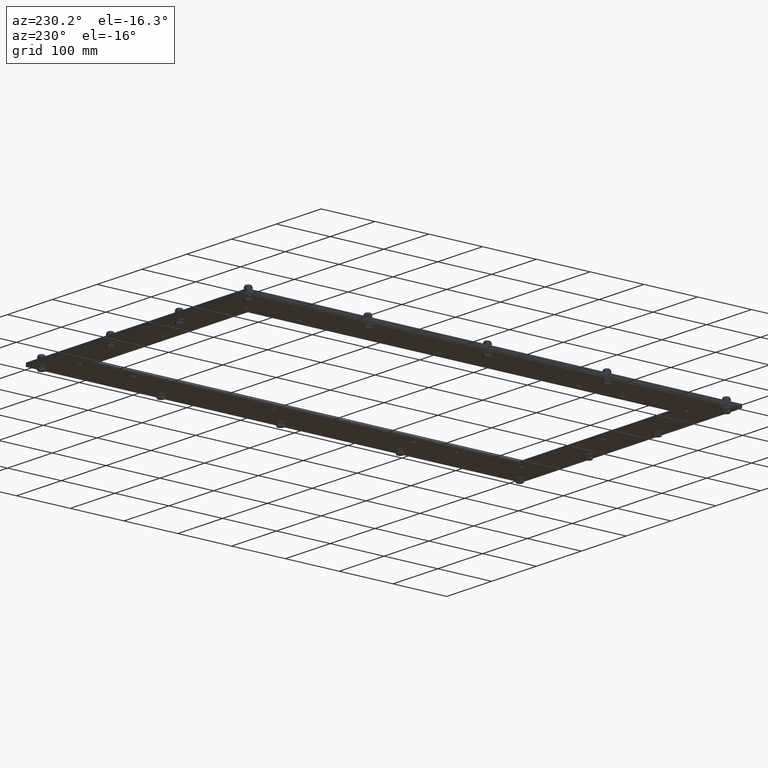
[diagram: clean part render]
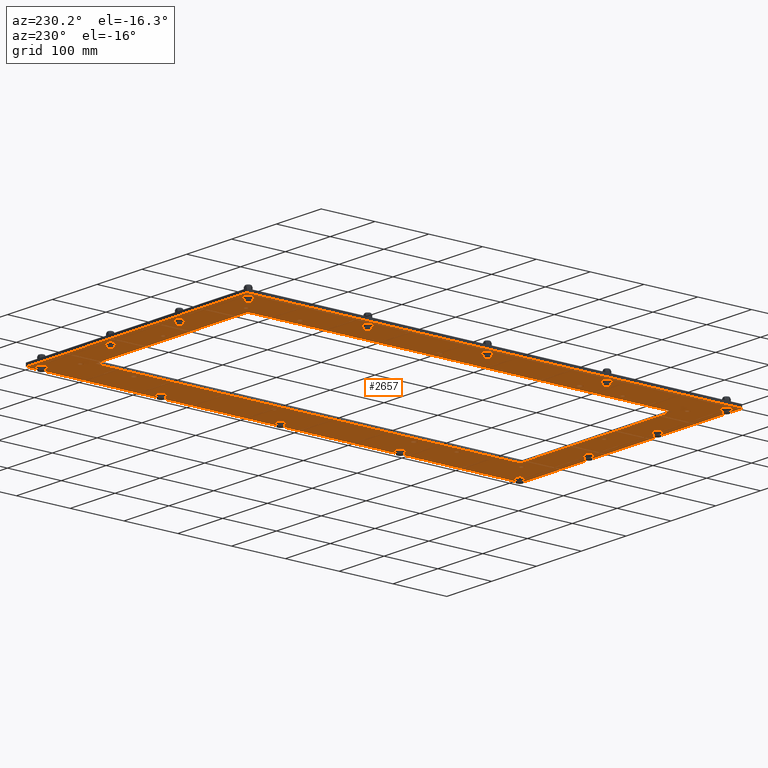
[diagram: same view with one face highlighted and labeled with its STEP entity id]
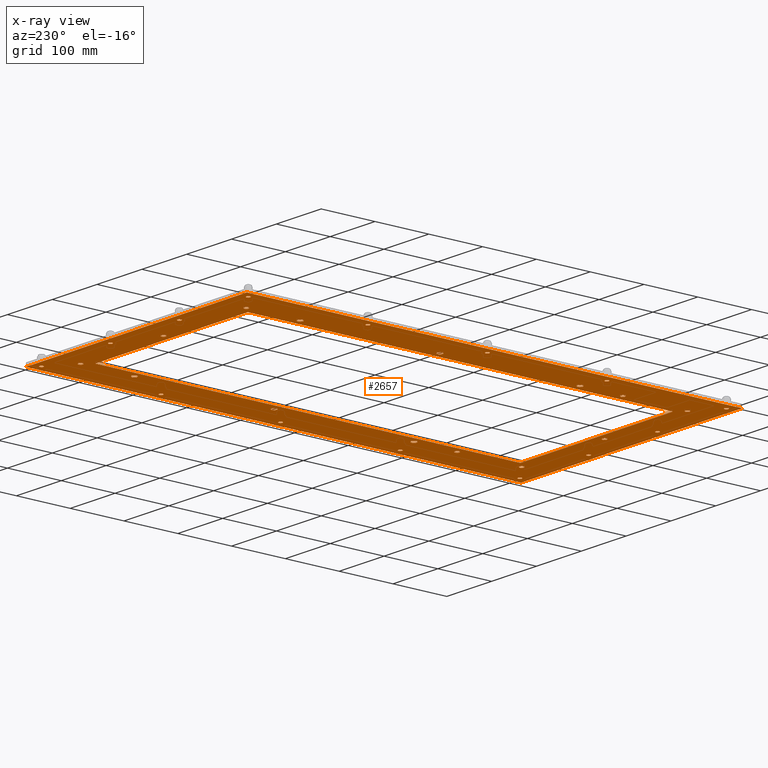
[diagram: x-ray of the same camera — body ghosted, the highlighted face saturated]
A machine part, auxiliary view. The second image highlights one B-rep face of the part: STEP entity #2657.
The next image is the same camera in x-ray: the body ghosted, the highlighted face saturated — about 0% of this face is hidden behind the body in this view.
In plain terms, the highlighted planar face has unit normal (0, 0, 1).
Its self-contained STEP definition (entity closure, byte-faithful):
#214=FACE_BOUND('',#767,.T.);
#215=FACE_BOUND('',#768,.T.);
#216=FACE_BOUND('',#769,.T.);
#217=FACE_BOUND('',#770,.T.);
#218=FACE_BOUND('',#771,.T.);
#219=FACE_BOUND('',#772,.T.);
#220=FACE_BOUND('',#773,.T.);
#221=FACE_BOUND('',#774,.T.);
#222=FACE_BOUND('',#775,.T.);
#223=FACE_BOUND('',#776,.T.);
#224=FACE_BOUND('',#777,.T.);
#225=FACE_BOUND('',#778,.T.);
#226=FACE_BOUND('',#779,.T.);
#227=FACE_BOUND('',#780,.T.);
#228=FACE_BOUND('',#781,.T.);
#229=FACE_BOUND('',#782,.T.);
#230=FACE_BOUND('',#783,.T.);
#231=FACE_BOUND('',#784,.T.);
#232=FACE_BOUND('',#785,.T.);
#233=FACE_BOUND('',#786,.T.);
#234=FACE_BOUND('',#787,.T.);
#235=FACE_BOUND('',#788,.T.);
#236=FACE_BOUND('',#789,.T.);
#237=FACE_BOUND('',#790,.T.);
#238=FACE_BOUND('',#791,.T.);
#239=FACE_BOUND('',#792,.T.);
#240=FACE_BOUND('',#793,.T.);
#241=FACE_BOUND('',#794,.T.);
#242=FACE_BOUND('',#795,.T.);
#319=CIRCLE('',#2784,0.1968504);
#321=CIRCLE('',#2787,0.1968504);
#323=CIRCLE('',#2790,0.1968504);
#325=CIRCLE('',#2793,0.1968504);
#327=CIRCLE('',#2796,0.1968504);
#329=CIRCLE('',#2799,0.1968504);
#331=CIRCLE('',#2802,0.1574803);
#333=CIRCLE('',#2805,0.1574803);
#335=CIRCLE('',#2808,0.1574803);
#337=CIRCLE('',#2811,0.1574803);
#339=CIRCLE('',#2814,0.1574803);
#341=CIRCLE('',#2817,0.1574803);
#343=CIRCLE('',#2820,0.1574803);
#345=CIRCLE('',#2823,0.1574803);
#347=CIRCLE('',#2826,0.140625);
#349=CIRCLE('',#2829,0.140625);
#351=CIRCLE('',#2832,0.140625);
#353=CIRCLE('',#2835,0.140625);
#355=CIRCLE('',#2838,0.140625);
#357=CIRCLE('',#2841,0.140625);
#359=CIRCLE('',#2844,0.140625);
#361=CIRCLE('',#2847,0.140625);
#363=CIRCLE('',#2850,0.140625);
#365=CIRCLE('',#2853,0.140625);
#367=CIRCLE('',#2856,0.140625);
#369=CIRCLE('',#2859,0.140625);
#371=CIRCLE('',#2862,0.140625);
#373=CIRCLE('',#2865,0.140625);
#558=FACE_OUTER_BOUND('',#766,.T.);
#766=EDGE_LOOP('',(#1940,#1941,#1942,#1943));
#767=EDGE_LOOP('',(#1944,#1945,#1946,#1947));
#768=EDGE_LOOP('',(#1948));
#769=EDGE_LOOP('',(#1949));
#770=EDGE_LOOP('',(#1950));
#771=EDGE_LOOP('',(#1951));
#772=EDGE_LOOP('',(#1952));
#773=EDGE_LOOP('',(#1953));
#774=EDGE_LOOP('',(#1954));
#775=EDGE_LOOP('',(#1955));
#776=EDGE_LOOP('',(#1956));
#777=EDGE_LOOP('',(#1957));
#778=EDGE_LOOP('',(#1958));
#779=EDGE_LOOP('',(#1959));
#780=EDGE_LOOP('',(#1960));
#781=EDGE_LOOP('',(#1961));
#782=EDGE_LOOP('',(#1962));
#783=EDGE_LOOP('',(#1963));
#784=EDGE_LOOP('',(#1964));
#785=EDGE_LOOP('',(#1965));
#786=EDGE_LOOP('',(#1966));
#787=EDGE_LOOP('',(#1967));
#788=EDGE_LOOP('',(#1968));
#789=EDGE_LOOP('',(#1969));
#790=EDGE_LOOP('',(#1970));
#791=EDGE_LOOP('',(#1971));
#792=EDGE_LOOP('',(#1972));
#793=EDGE_LOOP('',(#1973));
#794=EDGE_LOOP('',(#1974));
#795=EDGE_LOOP('',(#1975));
#985=LINE('',#3886,#1126);
#989=LINE('',#3894,#1130);
#992=LINE('',#3900,#1133);
#995=LINE('',#3905,#1136);
#999=LINE('',#4054,#1140);
#1003=LINE('',#4061,#1144);
#1006=LINE('',#4067,#1147);
#1008=LINE('',#4070,#1149);
#1126=VECTOR('',#3103,13.38583);
#1130=VECTOR('',#3109,31.10236);
#1133=VECTOR('',#3114,13.38583);
#1136=VECTOR('',#3119,31.10236);
#1140=VECTOR('',#3293,36.25);
#1144=VECTOR('',#3299,19.40625);
#1147=VECTOR('',#3304,36.25);
#1149=VECTOR('',#3308,19.40625);
#1267=VERTEX_POINT('',#3884);
#1268=VERTEX_POINT('',#3885);
#1271=VERTEX_POINT('',#3893);
#1273=VERTEX_POINT('',#3899);
#1275=VERTEX_POINT('',#3908);
#1277=VERTEX_POINT('',#3913);
#1279=VERTEX_POINT('',#3918);
#1281=VERTEX_POINT('',#3923);
#1283=VERTEX_POINT('',#3928);
#1285=VERTEX_POINT('',#3933);
#1287=VERTEX_POINT('',#3938);
#1289=VERTEX_POINT('',#3943);
#1291=VERTEX_POINT('',#3948);
#1293=VERTEX_POINT('',#3953);
#1295=VERTEX_POINT('',#3958);
#1297=VERTEX_POINT('',#3963);
#1299=VERTEX_POINT('',#3968);
#1301=VERTEX_POINT('',#3973);
#1303=VERTEX_POINT('',#3978);
#1305=VERTEX_POINT('',#3983);
#1307=VERTEX_POINT('',#3988);
#1309=VERTEX_POINT('',#3993);
#1311=VERTEX_POINT('',#3998);
#1313=VERTEX_POINT('',#4003);
#1315=VERTEX_POINT('',#4008);
#1317=VERTEX_POINT('',#4013);
#1319=VERTEX_POINT('',#4018);
#1321=VERTEX_POINT('',#4023);
#1323=VERTEX_POINT('',#4028);
#1325=VERTEX_POINT('',#4033);
#1327=VERTEX_POINT('',#4038);
#1329=VERTEX_POINT('',#4043);
#1333=VERTEX_POINT('',#4051);
#1334=VERTEX_POINT('',#4053);
#1336=VERTEX_POINT('',#4059);
#1338=VERTEX_POINT('',#4065);
#1507=EDGE_CURVE('',#1267,#1268,#985,.T.);
#1511=EDGE_CURVE('',#1268,#1271,#989,.T.);
#1514=EDGE_CURVE('',#1271,#1273,#992,.T.);
#1517=EDGE_CURVE('',#1273,#1267,#995,.T.);
#1519=EDGE_CURVE('',#1275,#1275,#319,.T.);
#1521=EDGE_CURVE('',#1277,#1277,#321,.T.);
#1523=EDGE_CURVE('',#1279,#1279,#323,.T.);
#1525=EDGE_CURVE('',#1281,#1281,#325,.T.);
#1527=EDGE_CURVE('',#1283,#1283,#327,.T.);
#1529=EDGE_CURVE('',#1285,#1285,#329,.T.);
#1531=EDGE_CURVE('',#1287,#1287,#331,.T.);
#1533=EDGE_CURVE('',#1289,#1289,#333,.T.);
#1535=EDGE_CURVE('',#1291,#1291,#335,.T.);
#1537=EDGE_CURVE('',#1293,#1293,#337,.T.);
#1539=EDGE_CURVE('',#1295,#1295,#339,.T.);
#1541=EDGE_CURVE('',#1297,#1297,#341,.T.);
#1543=EDGE_CURVE('',#1299,#1299,#343,.T.);
#1545=EDGE_CURVE('',#1301,#1301,#345,.T.);
#1547=EDGE_CURVE('',#1303,#1303,#347,.T.);
#1549=EDGE_CURVE('',#1305,#1305,#349,.T.);
#1551=EDGE_CURVE('',#1307,#1307,#351,.T.);
#1553=EDGE_CURVE('',#1309,#1309,#353,.T.);
#1555=EDGE_CURVE('',#1311,#1311,#355,.T.);
#1557=EDGE_CURVE('',#1313,#1313,#357,.T.);
#1559=EDGE_CURVE('',#1315,#1315,#359,.T.);
#1561=EDGE_CURVE('',#1317,#1317,#361,.T.);
#1563=EDGE_CURVE('',#1319,#1319,#363,.T.);
#1565=EDGE_CURVE('',#1321,#1321,#365,.T.);
#1567=EDGE_CURVE('',#1323,#1323,#367,.T.);
#1569=EDGE_CURVE('',#1325,#1325,#369,.T.);
#1571=EDGE_CURVE('',#1327,#1327,#371,.T.);
#1573=EDGE_CURVE('',#1329,#1329,#373,.T.);
#1577=EDGE_CURVE('',#1334,#1333,#999,.T.);
#1581=EDGE_CURVE('',#1333,#1336,#1003,.T.);
#1584=EDGE_CURVE('',#1336,#1338,#1006,.T.);
#1586=EDGE_CURVE('',#1338,#1334,#1008,.T.);
#1940=ORIENTED_EDGE('',*,*,#1586,.T.);
#1941=ORIENTED_EDGE('',*,*,#1577,.T.);
#1942=ORIENTED_EDGE('',*,*,#1581,.T.);
#1943=ORIENTED_EDGE('',*,*,#1584,.T.);
#1944=ORIENTED_EDGE('',*,*,#1507,.T.);
#1945=ORIENTED_EDGE('',*,*,#1511,.T.);
#1946=ORIENTED_EDGE('',*,*,#1514,.T.);
#1947=ORIENTED_EDGE('',*,*,#1517,.T.);
#1948=ORIENTED_EDGE('',*,*,#1519,.T.);
#1949=ORIENTED_EDGE('',*,*,#1521,.T.);
#1950=ORIENTED_EDGE('',*,*,#1523,.T.);
#1951=ORIENTED_EDGE('',*,*,#1525,.T.);
#1952=ORIENTED_EDGE('',*,*,#1527,.T.);
#1953=ORIENTED_EDGE('',*,*,#1529,.T.);
#1954=ORIENTED_EDGE('',*,*,#1531,.T.);
#1955=ORIENTED_EDGE('',*,*,#1533,.T.);
#1956=ORIENTED_EDGE('',*,*,#1535,.T.);
#1957=ORIENTED_EDGE('',*,*,#1537,.T.);
#1958=ORIENTED_EDGE('',*,*,#1539,.T.);
#1959=ORIENTED_EDGE('',*,*,#1541,.T.);
#1960=ORIENTED_EDGE('',*,*,#1543,.T.);
#1961=ORIENTED_EDGE('',*,*,#1545,.T.);
#1962=ORIENTED_EDGE('',*,*,#1547,.T.);
#1963=ORIENTED_EDGE('',*,*,#1549,.T.);
#1964=ORIENTED_EDGE('',*,*,#1551,.T.);
#1965=ORIENTED_EDGE('',*,*,#1553,.T.);
#1966=ORIENTED_EDGE('',*,*,#1555,.T.);
#1967=ORIENTED_EDGE('',*,*,#1557,.T.);
#1968=ORIENTED_EDGE('',*,*,#1559,.T.);
#1969=ORIENTED_EDGE('',*,*,#1561,.T.);
#1970=ORIENTED_EDGE('',*,*,#1563,.T.);
#1971=ORIENTED_EDGE('',*,*,#1565,.T.);
#1972=ORIENTED_EDGE('',*,*,#1567,.T.);
#1973=ORIENTED_EDGE('',*,*,#1569,.T.);
#1974=ORIENTED_EDGE('',*,*,#1571,.T.);
#1975=ORIENTED_EDGE('',*,*,#1573,.T.);
#2443=PLANE('',#2872);
#2657=ADVANCED_FACE('',(#558,#214,#215,#216,#217,#218,#219,#220,#221,#222,
#223,#224,#225,#226,#227,#228,#229,#230,#231,#232,#233,#234,#235,#236,#237,
#238,#239,#240,#241,#242),#2443,.F.);
#2784=AXIS2_PLACEMENT_3D('',#3909,#3123,#3124);
#2787=AXIS2_PLACEMENT_3D('',#3914,#3129,#3130);
#2790=AXIS2_PLACEMENT_3D('',#3919,#3135,#3136);
#2793=AXIS2_PLACEMENT_3D('',#3924,#3141,#3142);
#2796=AXIS2_PLACEMENT_3D('',#3929,#3147,#3148);
#2799=AXIS2_PLACEMENT_3D('',#3934,#3153,#3154);
#2802=AXIS2_PLACEMENT_3D('',#3939,#3159,#3160);
#2805=AXIS2_PLACEMENT_3D('',#3944,#3165,#3166);
#2808=AXIS2_PLACEMENT_3D('',#3949,#3171,#3172);
#2811=AXIS2_PLACEMENT_3D('',#3954,#3177,#3178);
#2814=AXIS2_PLACEMENT_3D('',#3959,#3183,#3184);
#2817=AXIS2_PLACEMENT_3D('',#3964,#3189,#3190);
#2820=AXIS2_PLACEMENT_3D('',#3969,#3195,#3196);
#2823=AXIS2_PLACEMENT_3D('',#3974,#3201,#3202);
#2826=AXIS2_PLACEMENT_3D('',#3979,#3207,#3208);
#2829=AXIS2_PLACEMENT_3D('',#3984,#3213,#3214);
#2832=AXIS2_PLACEMENT_3D('',#3989,#3219,#3220);
#2835=AXIS2_PLACEMENT_3D('',#3994,#3225,#3226);
#2838=AXIS2_PLACEMENT_3D('',#3999,#3231,#3232);
#2841=AXIS2_PLACEMENT_3D('',#4004,#3237,#3238);
#2844=AXIS2_PLACEMENT_3D('',#4009,#3243,#3244);
#2847=AXIS2_PLACEMENT_3D('',#4014,#3249,#3250);
#2850=AXIS2_PLACEMENT_3D('',#4019,#3255,#3256);
#2853=AXIS2_PLACEMENT_3D('',#4024,#3261,#3262);
#2856=AXIS2_PLACEMENT_3D('',#4029,#3267,#3268);
#2859=AXIS2_PLACEMENT_3D('',#4034,#3273,#3274);
#2862=AXIS2_PLACEMENT_3D('',#4039,#3279,#3280);
#2865=AXIS2_PLACEMENT_3D('',#4044,#3285,#3286);
#2872=AXIS2_PLACEMENT_3D('',#4072,#3311,#3312);
#3103=DIRECTION('',(1.,-4.17966214349384E-16,0.));
#3109=DIRECTION('',(3.5976849930516E-16,1.,0.));
#3114=DIRECTION('',(-1.,4.17966214349384E-16,0.));
#3119=DIRECTION('',(-3.5976849930516E-16,-1.,0.));
#3123=DIRECTION('center_axis',(0.,0.,1.));
#3124=DIRECTION('ref_axis',(-1.,0.,0.));
#3129=DIRECTION('center_axis',(0.,0.,1.));
#3130=DIRECTION('ref_axis',(-1.,0.,0.));
#3135=DIRECTION('center_axis',(0.,0.,1.));
#3136=DIRECTION('ref_axis',(-1.,0.,0.));
#3141=DIRECTION('center_axis',(0.,0.,1.));
#3142=DIRECTION('ref_axis',(-1.,0.,0.));
#3147=DIRECTION('center_axis',(0.,0.,1.));
#3148=DIRECTION('ref_axis',(-1.,0.,0.));
#3153=DIRECTION('center_axis',(0.,0.,1.));
#3154=DIRECTION('ref_axis',(-1.,0.,0.));
#3159=DIRECTION('center_axis',(0.,0.,1.));
#3160=DIRECTION('ref_axis',(-1.,0.,0.));
#3165=DIRECTION('center_axis',(0.,0.,1.));
#3166=DIRECTION('ref_axis',(-1.,0.,0.));
#3171=DIRECTION('center_axis',(0.,0.,1.));
#3172=DIRECTION('ref_axis',(-1.,0.,0.));
#3177=DIRECTION('center_axis',(0.,0.,1.));
#3178=DIRECTION('ref_axis',(-1.,0.,0.));
#3183=DIRECTION('center_axis',(0.,0.,1.));
#3184=DIRECTION('ref_axis',(-1.,0.,0.));
#3189=DIRECTION('center_axis',(0.,0.,1.));
#3190=DIRECTION('ref_axis',(-1.,0.,0.));
#3195=DIRECTION('center_axis',(0.,0.,1.));
#3196=DIRECTION('ref_axis',(-1.,0.,0.));
#3201=DIRECTION('center_axis',(0.,0.,1.));
#3202=DIRECTION('ref_axis',(-1.,0.,0.));
#3207=DIRECTION('center_axis',(0.,0.,1.));
#3208=DIRECTION('ref_axis',(-1.,0.,0.));
#3213=DIRECTION('center_axis',(0.,0.,1.));
#3214=DIRECTION('ref_axis',(-1.,0.,0.));
#3219=DIRECTION('center_axis',(0.,0.,1.));
#3220=DIRECTION('ref_axis',(-1.,0.,0.));
#3225=DIRECTION('center_axis',(0.,0.,1.));
#3226=DIRECTION('ref_axis',(-1.,0.,0.));
#3231=DIRECTION('center_axis',(0.,0.,1.));
#3232=DIRECTION('ref_axis',(-1.,0.,0.));
#3237=DIRECTION('center_axis',(0.,0.,1.));
#3238=DIRECTION('ref_axis',(-1.,0.,0.));
#3243=DIRECTION('center_axis',(0.,0.,1.));
#3244=DIRECTION('ref_axis',(-1.,0.,0.));
#3249=DIRECTION('center_axis',(0.,0.,1.));
#3250=DIRECTION('ref_axis',(-1.,0.,0.));
#3255=DIRECTION('center_axis',(0.,0.,1.));
#3256=DIRECTION('ref_axis',(-1.,0.,0.));
#3261=DIRECTION('center_axis',(0.,0.,1.));
#3262=DIRECTION('ref_axis',(-1.,0.,0.));
#3267=DIRECTION('center_axis',(0.,0.,1.));
#3268=DIRECTION('ref_axis',(-1.,0.,0.));
#3273=DIRECTION('center_axis',(0.,0.,1.));
#3274=DIRECTION('ref_axis',(-1.,0.,0.));
#3279=DIRECTION('center_axis',(0.,0.,1.));
#3280=DIRECTION('ref_axis',(-1.,0.,0.));
#3285=DIRECTION('center_axis',(0.,0.,1.));
#3286=DIRECTION('ref_axis',(-1.,0.,0.));
#3293=DIRECTION('',(7.71699957382677E-17,-1.,0.));
#3299=DIRECTION('',(-1.,-1.44150072554574E-16,0.));
#3304=DIRECTION('',(-2.31509987214803E-16,1.,0.));
#3308=DIRECTION('',(1.,0.,0.));
#3311=DIRECTION('center_axis',(0.,0.,1.));
#3312=DIRECTION('ref_axis',(1.,0.,0.));
#3884=CARTESIAN_POINT('',(-6.69291500000001,-15.5511772,-2.18547839493141E-17));
#3885=CARTESIAN_POINT('',(6.69291499999999,-15.5511772,-2.18547839493141E-17));
#3886=CARTESIAN_POINT('',(-3.34645750000001,-15.5511772,0.));
#3893=CARTESIAN_POINT('',(6.692915,15.5511828,-2.18547839493141E-17));
#3894=CARTESIAN_POINT('',(6.69291499999999,-7.7755886,0.));
#3899=CARTESIAN_POINT('',(-6.692915,15.5511828,-2.18547839493141E-17));
#3900=CARTESIAN_POINT('',(3.3464575,15.5511828,0.));
#3905=CARTESIAN_POINT('',(-6.692915,7.7755914,0.));
#3908=CARTESIAN_POINT('',(7.48031540000002,-8.26771399999999,0.));
#3909=CARTESIAN_POINT('Origin',(7.28346500000002,-8.26771399999999,0.));
#3913=CARTESIAN_POINT('',(-7.08661459999999,-8.26771399999998,0.));
#3914=CARTESIAN_POINT('Origin',(-7.28346499999999,-8.26771399999998,0.));
#3918=CARTESIAN_POINT('',(7.48031540000003,1.968506,0.));
#3919=CARTESIAN_POINT('Origin',(7.28346500000003,1.968506,0.));
#3923=CARTESIAN_POINT('',(-7.08661459999999,1.968506,0.));
#3924=CARTESIAN_POINT('Origin',(-7.28346499999999,1.968506,0.));
#3928=CARTESIAN_POINT('',(7.48031540000004,12.204726,0.));
#3929=CARTESIAN_POINT('Origin',(7.28346500000004,12.204726,0.));
#3933=CARTESIAN_POINT('',(-7.08661459999998,12.204726,0.));
#3934=CARTESIAN_POINT('Origin',(-7.28346499999998,12.204726,0.));
#3938=CARTESIAN_POINT('',(0.157480300000017,-16.141729,0.));
#3939=CARTESIAN_POINT('Origin',(1.67844740730732E-14,-16.141729,0.));
#3943=CARTESIAN_POINT('',(7.44094530000002,-16.141729,0.));
#3944=CARTESIAN_POINT('Origin',(7.28346500000002,-16.141729,0.));
#3948=CARTESIAN_POINT('',(-7.12598469999999,-16.141729,0.));
#3949=CARTESIAN_POINT('Origin',(-7.28346499999999,-16.141729,0.));
#3953=CARTESIAN_POINT('',(7.44094530000002,-11.41732,0.));
#3954=CARTESIAN_POINT('Origin',(7.28346500000002,-11.41732,0.));
#3958=CARTESIAN_POINT('',(-7.12598469999999,-11.41732,0.));
#3959=CARTESIAN_POINT('Origin',(-7.28346499999999,-11.41732,0.));
#3963=CARTESIAN_POINT('',(7.44094530000003,16.141734,0.));
#3964=CARTESIAN_POINT('Origin',(7.28346500000004,16.141734,0.));
#3968=CARTESIAN_POINT('',(-7.12598469999998,16.141734,0.));
#3969=CARTESIAN_POINT('Origin',(-7.28346499999998,16.141734,0.));
#3973=CARTESIAN_POINT('',(0.157480300000028,16.141734,0.));
#3974=CARTESIAN_POINT('Origin',(2.79741234551221E-14,16.141734,0.));
#3978=CARTESIAN_POINT('',(9.21875000000001,-17.5,0.));
#3979=CARTESIAN_POINT('Origin',(9.07812500000001,-17.5,0.));
#3983=CARTESIAN_POINT('',(3.16666666666667,-17.5,0.));
#3984=CARTESIAN_POINT('Origin',(3.02604166666667,-17.5,0.));
#3988=CARTESIAN_POINT('',(-2.88541666666666,-17.5,0.));
#3989=CARTESIAN_POINT('Origin',(-3.02604166666666,-17.5,0.));
#3993=CARTESIAN_POINT('',(-8.93749999999999,-17.5,0.));
#3994=CARTESIAN_POINT('Origin',(-9.07812499999999,-17.5,0.));
#3998=CARTESIAN_POINT('',(9.21875,-8.75,0.));
#3999=CARTESIAN_POINT('Origin',(9.078125,-8.75,0.));
#4003=CARTESIAN_POINT('',(-8.9375,-8.75,0.));
#4004=CARTESIAN_POINT('Origin',(-9.07812499999999,-8.75,0.));
#4008=CARTESIAN_POINT('',(9.21875,2.79741234551221E-15,0.));
#4009=CARTESIAN_POINT('Origin',(9.078125,2.79741234551221E-15,0.));
#4013=CARTESIAN_POINT('',(-8.9375,2.79741234551221E-15,0.));
#4014=CARTESIAN_POINT('Origin',(-9.078125,2.79741234551221E-15,0.));
#4018=CARTESIAN_POINT('',(9.21875,8.75,0.));
#4019=CARTESIAN_POINT('Origin',(9.078125,8.75,0.));
#4023=CARTESIAN_POINT('',(-8.9375,8.75,0.));
#4024=CARTESIAN_POINT('Origin',(-9.078125,8.75,0.));
#4028=CARTESIAN_POINT('',(9.21875,17.5,0.));
#4029=CARTESIAN_POINT('Origin',(9.078125,17.5,0.));
#4033=CARTESIAN_POINT('',(3.16666666666666,17.5,0.));
#4034=CARTESIAN_POINT('Origin',(3.02604166666667,17.5,0.));
#4038=CARTESIAN_POINT('',(-2.88541666666667,17.5,0.));
#4039=CARTESIAN_POINT('Origin',(-3.02604166666667,17.5,0.));
#4043=CARTESIAN_POINT('',(-8.9375,17.5,0.));
#4044=CARTESIAN_POINT('Origin',(-9.078125,17.5,0.));
#4051=CARTESIAN_POINT('',(9.703125,-18.125,0.));
#4053=CARTESIAN_POINT('',(9.703125,18.125,0.));
#4054=CARTESIAN_POINT('',(9.703125,18.125,0.));
#4059=CARTESIAN_POINT('',(-9.70312499999999,-18.125,0.));
#4061=CARTESIAN_POINT('',(9.703125,-18.125,0.));
#4065=CARTESIAN_POINT('',(-9.703125,18.125,0.));
#4067=CARTESIAN_POINT('',(-9.70312499999999,-18.125,0.));
#4070=CARTESIAN_POINT('',(-9.703125,18.125,0.));
#4072=CARTESIAN_POINT('Origin',(6.99353086378051E-16,1.60114766899672E-15,
0.));